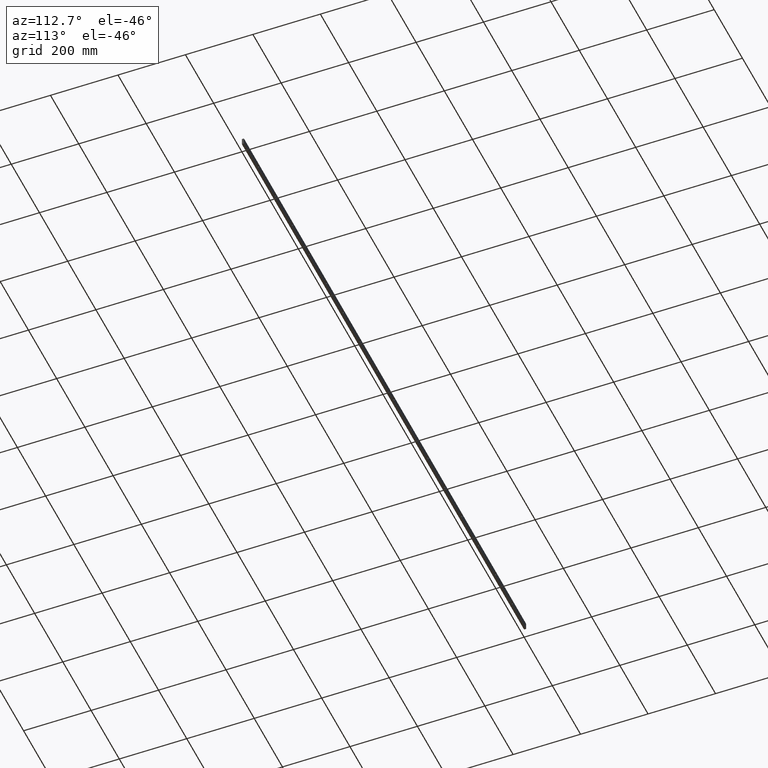
[diagram: clean part render]
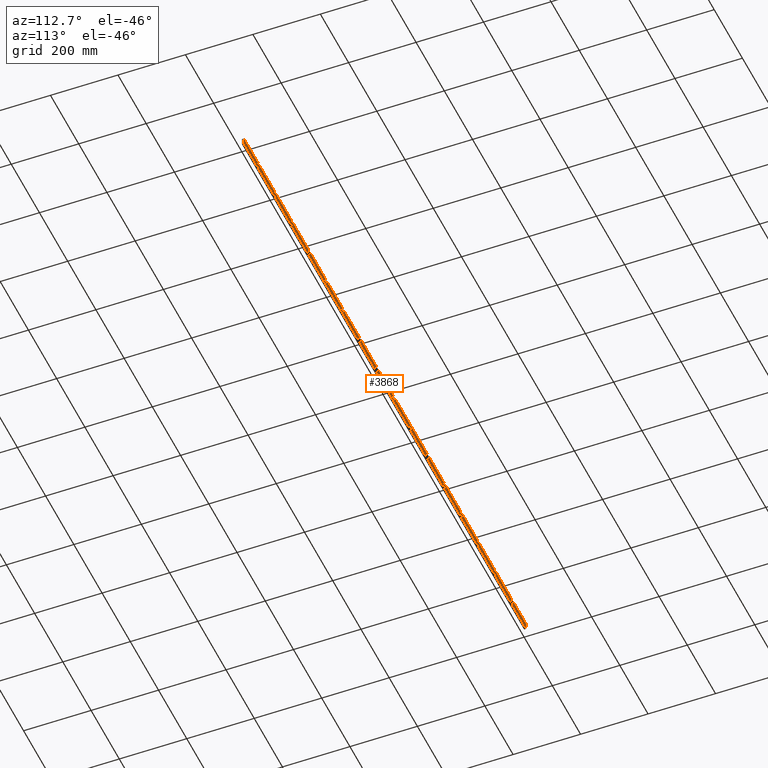
[diagram: same view with one face highlighted and labeled with its STEP entity id]
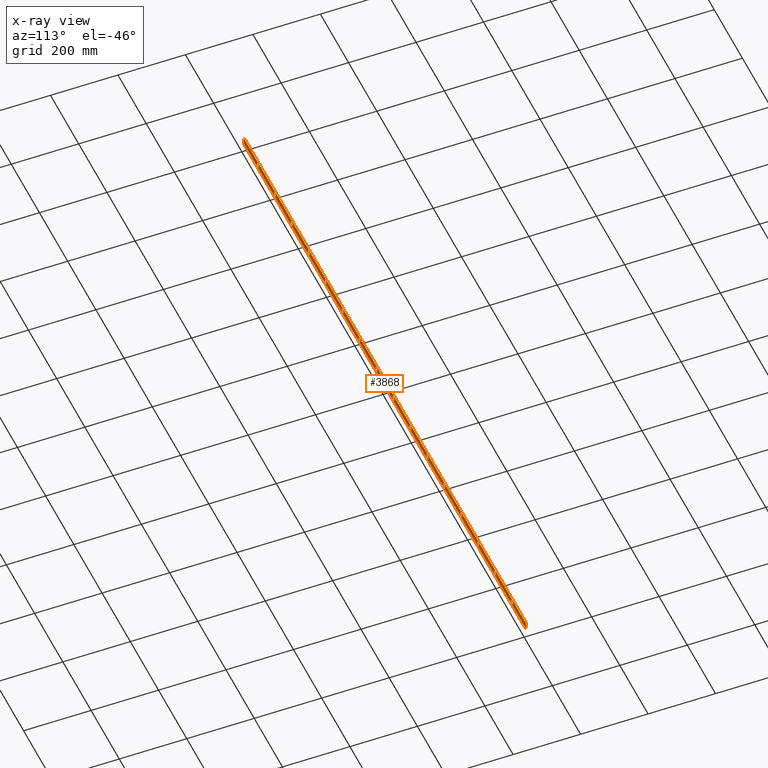
[diagram: x-ray of the same camera — body ghosted, the highlighted face saturated]
A machine part, auxiliary view. The second image highlights one B-rep face of the part: STEP entity #3868.
The next image is the same camera in x-ray: the body ghosted, the highlighted face saturated — about 0% of this face is hidden behind the body in this view.
In plain terms, the highlighted planar face has unit normal (0, -1, 0).
Its self-contained STEP definition (entity closure, byte-faithful):
#4 = DIRECTION ( 'NONE',  ( 0.0000000000000000000, 0.0000000000000000000, 1.000000000000000000 ) ) ;
#10 = EDGE_CURVE ( 'NONE', #327, #2465, #3402, .T. ) ;
#25 = DIRECTION ( 'NONE',  ( 0.0000000000000000000, 1.000000000000000000, 0.0000000000000000000 ) ) ;
#27 = CARTESIAN_POINT ( 'NONE',  ( 219.9999999999999100, 6.000000000000000000, -10.00000000000000000 ) ) ;
#28 = CARTESIAN_POINT ( 'NONE',  ( 1059.999999999999300, 6.000000000000000000, -10.00000000000000000 ) ) ;
#31 = CARTESIAN_POINT ( 'NONE',  ( 100.0000000000000000, 6.000000000000000000, -10.00000000000000000 ) ) ;
#36 = CIRCLE ( 'NONE', #5561, 6.499999999999903200 ) ;
#85 = DIRECTION ( 'NONE',  ( 0.0000000000000000000, 0.0000000000000000000, 1.000000000000000000 ) ) ;
#94 = ORIENTED_EDGE ( 'NONE', *, *, #816, .F. ) ;
#143 = PLANE ( 'NONE',  #3878 ) ;
#161 = EDGE_LOOP ( 'NONE', ( #6434, #4252 ) ) ;
#184 = DIRECTION ( 'NONE',  ( 0.0000000000000000000, 1.000000000000000000, 0.0000000000000000000 ) ) ;
#193 = CARTESIAN_POINT ( 'NONE',  ( 1299.999999999999300, 6.000000000000000000, -3.500000000000096800 ) ) ;
#200 = ORIENTED_EDGE ( 'NONE', *, *, #2024, .F. ) ;
#220 = CARTESIAN_POINT ( 'NONE',  ( 1299.999999999999300, 6.000000000000000000, -16.49999999999990400 ) ) ;
#233 = CARTESIAN_POINT ( 'NONE',  ( 1059.999999999999300, 6.000000000000000000, -16.49999999999990400 ) ) ;
#236 = DIRECTION ( 'NONE',  ( 0.0000000000000000000, 0.0000000000000000000, 1.000000000000000000 ) ) ;
#262 = CARTESIAN_POINT ( 'NONE',  ( 100.0000000000000000, 6.000000000000000000, -10.00000000000000000 ) ) ;
#276 = CARTESIAN_POINT ( 'NONE',  ( 0.0000000000000000000, 6.000000000000000000, 0.0000000000000000000 ) ) ;
#278 = CIRCLE ( 'NONE', #809, 6.499999999999903200 ) ;
#282 = CARTESIAN_POINT ( 'NONE',  ( 1419.999999999999300, 6.000000000000000000, -16.49999999999990400 ) ) ;
#309 = DIRECTION ( 'NONE',  ( 0.0000000000000000000, 0.0000000000000000000, 1.000000000000000000 ) ) ;
#318 = DIRECTION ( 'NONE',  ( 0.0000000000000000000, 1.000000000000000000, 0.0000000000000000000 ) ) ;
#326 = DIRECTION ( 'NONE',  ( 0.0000000000000000000, 1.000000000000000000, 0.0000000000000000000 ) ) ;
#327 = VERTEX_POINT ( 'NONE', #5230 ) ;
#333 = CIRCLE ( 'NONE', #3318, 6.499999999999903200 ) ;
#335 = CARTESIAN_POINT ( 'NONE',  ( 1539.999999999999100, 6.000000000000000000, -10.00000000000000000 ) ) ;
#350 = VERTEX_POINT ( 'NONE', #5167 ) ;
#357 = VERTEX_POINT ( 'NONE', #5191 ) ;
#410 = FACE_BOUND ( 'NONE', #534, .T. ) ;
#493 = DIRECTION ( 'NONE',  ( 0.0000000000000000000, 0.0000000000000000000, 1.000000000000000000 ) ) ;
#497 = DIRECTION ( 'NONE',  ( 0.0000000000000000000, 1.000000000000000000, 0.0000000000000000000 ) ) ;
#507 = CARTESIAN_POINT ( 'NONE',  ( 699.9999999999996600, 6.000000000000000000, -10.00000000000000000 ) ) ;
#511 = EDGE_LOOP ( 'NONE', ( #1147, #7027 ) ) ;
#534 = EDGE_LOOP ( 'NONE', ( #3570, #5729 ) ) ;
#572 = DIRECTION ( 'NONE',  ( 0.0000000000000000000, 1.000000000000000000, 0.0000000000000000000 ) ) ;
#585 = FACE_OUTER_BOUND ( 'NONE', #4127, .T. ) ;
#601 = EDGE_CURVE ( 'NONE', #3578, #6536, #4064, .T. ) ;
#611 = DIRECTION ( 'NONE',  ( 0.0000000000000000000, 0.0000000000000000000, 1.000000000000000000 ) ) ;
#613 = AXIS2_PLACEMENT_3D ( 'NONE', #1420, #5351, #1993 ) ;
#617 = DIRECTION ( 'NONE',  ( 0.0000000000000000000, 0.0000000000000000000, 1.000000000000000000 ) ) ;
#625 = VERTEX_POINT ( 'NONE', #4316 ) ;
#713 = ORIENTED_EDGE ( 'NONE', *, *, #6050, .F. ) ;
#718 = CARTESIAN_POINT ( 'NONE',  ( 0.0000000000000000000, 6.000000000000000000, 0.0000000000000000000 ) ) ;
#725 = CARTESIAN_POINT ( 'NONE',  ( 579.9999999999997700, 6.000000000000000000, -16.50000000000002100 ) ) ;
#761 = AXIS2_PLACEMENT_3D ( 'NONE', #28, #3969, #611 ) ;
#768 = CIRCLE ( 'NONE', #4829, 6.499999999999903200 ) ;
#796 = CARTESIAN_POINT ( 'NONE',  ( 819.9999999999995500, 6.000000000000000000, -10.00000000000000000 ) ) ;
#809 = AXIS2_PLACEMENT_3D ( 'NONE', #1699, #1692, #1691 ) ;
#816 = EDGE_CURVE ( 'NONE', #1423, #350, #3536, .T. ) ;
#831 = DIRECTION ( 'NONE',  ( 0.0000000000000000000, 0.0000000000000000000, 1.000000000000000000 ) ) ;
#866 = CARTESIAN_POINT ( 'NONE',  ( 1539.999999999999100, 6.000000000000000000, -3.500000000000096800 ) ) ;
#879 = EDGE_LOOP ( 'NONE', ( #6784, #3708 ) ) ;
#903 = CARTESIAN_POINT ( 'NONE',  ( 1779.999999999999100, 6.000000000000000000, -3.500000000000096800 ) ) ;
#913 = CIRCLE ( 'NONE', #5608, 6.500000000000019500 ) ;
#927 = CARTESIAN_POINT ( 'NONE',  ( 1179.999999999999500, 6.000000000000000000, -3.500000000000096800 ) ) ;
#940 = ORIENTED_EDGE ( 'NONE', *, *, #5684, .F. ) ;
#945 = CIRCLE ( 'NONE', #4544, 6.499999999999903200 ) ;
#950 = VERTEX_POINT ( 'NONE', #2510 ) ;
#973 = ORIENTED_EDGE ( 'NONE', *, *, #5915, .F. ) ;
#1027 = CARTESIAN_POINT ( 'NONE',  ( 699.9999999999996600, 6.000000000000000000, -3.499999999999980500 ) ) ;
#1083 = DIRECTION ( 'NONE',  ( 0.0000000000000000000, 1.000000000000000000, 0.0000000000000000000 ) ) ;
#1112 = ORIENTED_EDGE ( 'NONE', *, *, #2904, .F. ) ;
#1147 = ORIENTED_EDGE ( 'NONE', *, *, #4899, .F. ) ;
#1204 = EDGE_CURVE ( 'NONE', #3413, #5615, #278, .T. ) ;
#1220 = CIRCLE ( 'NONE', #613, 6.499999999999903200 ) ;
#1309 = DIRECTION ( 'NONE',  ( -0.0000000000000000000, -0.0000000000000000000, 1.000000000000000000 ) ) ;
#1321 = CARTESIAN_POINT ( 'NONE',  ( 339.9999999999998900, 6.000000000000000000, -3.499999999999984900 ) ) ;
#1361 = CARTESIAN_POINT ( 'NONE',  ( 1299.999999999999300, 6.000000000000000000, -10.00000000000000000 ) ) ;
#1362 = DIRECTION ( 'NONE',  ( 0.0000000000000000000, 0.0000000000000000000, 1.000000000000000000 ) ) ;
#1365 = VERTEX_POINT ( 'NONE', #1321 ) ;
#1420 = CARTESIAN_POINT ( 'NONE',  ( 1899.999999999999100, 6.000000000000000000, -10.00000000000000000 ) ) ;
#1423 = VERTEX_POINT ( 'NONE', #903 ) ;
#1477 = VERTEX_POINT ( 'NONE', #276 ) ;
#1483 = VERTEX_POINT ( 'NONE', #220 ) ;
#1484 = ORIENTED_EDGE ( 'NONE', *, *, #5307, .F. ) ;
#1534 = EDGE_CURVE ( 'NONE', #5329, #4450, #2056, .T. ) ;
#1576 = CIRCLE ( 'NONE', #6185, 6.499999999999903200 ) ;
#1599 = VERTEX_POINT ( 'NONE', #282 ) ;
#1600 = CARTESIAN_POINT ( 'NONE',  ( 0.0000000000000000000, 6.000000000000000000, -20.00000000000000000 ) ) ;
#1609 = AXIS2_PLACEMENT_3D ( 'NONE', #3701, #326, #4269 ) ;
#1691 = DIRECTION ( 'NONE',  ( 0.0000000000000000000, 0.0000000000000000000, 1.000000000000000000 ) ) ;
#1692 = DIRECTION ( 'NONE',  ( 0.0000000000000000000, 1.000000000000000000, 0.0000000000000000000 ) ) ;
#1699 = CARTESIAN_POINT ( 'NONE',  ( 1179.999999999999500, 6.000000000000000000, -10.00000000000000000 ) ) ;
#1728 = DIRECTION ( 'NONE',  ( 0.0000000000000000000, 1.000000000000000000, 0.0000000000000000000 ) ) ;
#1739 = DIRECTION ( 'NONE',  ( 0.0000000000000000000, 1.000000000000000000, 0.0000000000000000000 ) ) ;
#1747 = AXIS2_PLACEMENT_3D ( 'NONE', #5448, #2084, #5999 ) ;
#1779 = EDGE_CURVE ( 'NONE', #1957, #6258, #6139, .T. ) ;
#1802 = CARTESIAN_POINT ( 'NONE',  ( 1899.999999999999100, 6.000000000000000000, -16.49999999999990400 ) ) ;
#1806 = EDGE_CURVE ( 'NONE', #4020, #6988, #3680, .T. ) ;
#1825 = EDGE_CURVE ( 'NONE', #357, #1599, #333, .T. ) ;
#1870 = CARTESIAN_POINT ( 'NONE',  ( 219.9999999999999100, 6.000000000000000000, -10.00000000000000000 ) ) ;
#1904 = FACE_BOUND ( 'NONE', #161, .T. ) ;
#1935 = DIRECTION ( 'NONE',  ( 0.0000000000000000000, 0.0000000000000000000, 1.000000000000000000 ) ) ;
#1942 = EDGE_LOOP ( 'NONE', ( #1112, #94 ) ) ;
#1957 = VERTEX_POINT ( 'NONE', #725 ) ;
#1993 = DIRECTION ( 'NONE',  ( 0.0000000000000000000, 0.0000000000000000000, 1.000000000000000000 ) ) ;
#2024 = EDGE_CURVE ( 'NONE', #1599, #357, #768, .T. ) ;
#2056 = CIRCLE ( 'NONE', #4587, 6.499999999999985800 ) ;
#2084 = DIRECTION ( 'NONE',  ( 0.0000000000000000000, 1.000000000000000000, 0.0000000000000000000 ) ) ;
#2085 = ORIENTED_EDGE ( 'NONE', *, *, #7155, .F. ) ;
#2090 = FACE_BOUND ( 'NONE', #6572, .T. ) ;
#2111 = DIRECTION ( 'NONE',  ( 0.0000000000000000000, 1.000000000000000000, 0.0000000000000000000 ) ) ;
#2126 = DIRECTION ( 'NONE',  ( 0.0000000000000000000, 1.000000000000000000, 0.0000000000000000000 ) ) ;
#2131 = AXIS2_PLACEMENT_3D ( 'NONE', #4469, #1083, #5041 ) ;
#2157 = CIRCLE ( 'NONE', #2227, 6.499999999999903200 ) ;
#2210 = AXIS2_PLACEMENT_3D ( 'NONE', #507, #497, #493 ) ;
#2227 = AXIS2_PLACEMENT_3D ( 'NONE', #3008, #6875, #3562 ) ;
#2247 = DIRECTION ( 'NONE',  ( 0.0000000000000000000, 1.000000000000000000, 0.0000000000000000000 ) ) ;
#2263 = FACE_BOUND ( 'NONE', #3601, .T. ) ;
#2267 = DIRECTION ( 'NONE',  ( 0.0000000000000000000, 1.000000000000000000, 0.0000000000000000000 ) ) ;
#2378 = EDGE_LOOP ( 'NONE', ( #6634, #6710 ) ) ;
#2439 = DIRECTION ( 'NONE',  ( 0.0000000000000000000, 0.0000000000000000000, 1.000000000000000000 ) ) ;
#2442 = AXIS2_PLACEMENT_3D ( 'NONE', #4271, #4265, #4258 ) ;
#2465 = VERTEX_POINT ( 'NONE', #1027 ) ;
#2488 = DIRECTION ( 'NONE',  ( 0.0000000000000000000, 1.000000000000000000, 0.0000000000000000000 ) ) ;
#2510 = CARTESIAN_POINT ( 'NONE',  ( 1659.999999999999100, 6.000000000000000000, -3.500000000000096800 ) ) ;
#2523 = DIRECTION ( 'NONE',  ( 0.0000000000000000000, 1.000000000000000000, 0.0000000000000000000 ) ) ;
#2566 = AXIS2_PLACEMENT_3D ( 'NONE', #6664, #5145, #6182 ) ;
#2568 = EDGE_LOOP ( 'NONE', ( #3448, #940 ) ) ;
#2572 = ORIENTED_EDGE ( 'NONE', *, *, #1806, .T. ) ;
#2576 = EDGE_CURVE ( 'NONE', #4293, #2764, #1576, .T. ) ;
#2639 = ORIENTED_EDGE ( 'NONE', *, *, #6515, .F. ) ;
#2643 = VECTOR ( 'NONE', #2852, 1000.000000000000000 ) ;
#2678 = EDGE_CURVE ( 'NONE', #4688, #6137, #2726, .T. ) ;
#2688 = CIRCLE ( 'NONE', #7169, 6.500000000000016000 ) ;
#2703 = CIRCLE ( 'NONE', #6292, 6.500000000000015100 ) ;
#2707 = CARTESIAN_POINT ( 'NONE',  ( 939.9999999999995500, 6.000000000000000000, -3.499999999999980500 ) ) ;
#2726 = CIRCLE ( 'NONE', #761, 6.499999999999903200 ) ;
#2744 = EDGE_LOOP ( 'NONE', ( #200, #5095 ) ) ;
#2764 = VERTEX_POINT ( 'NONE', #2900 ) ;
#2823 = EDGE_LOOP ( 'NONE', ( #5991, #2639 ) ) ;
#2852 = DIRECTION ( 'NONE',  ( -1.000000000000000000, -0.0000000000000000000, -0.0000000000000000000 ) ) ;
#2856 = VERTEX_POINT ( 'NONE', #4794 ) ;
#2891 = ORIENTED_EDGE ( 'NONE', *, *, #4177, .F. ) ;
#2895 = CIRCLE ( 'NONE', #3031, 6.499999999999985800 ) ;
#2900 = CARTESIAN_POINT ( 'NONE',  ( 1539.999999999999100, 6.000000000000000000, -16.49999999999990400 ) ) ;
#2904 = EDGE_CURVE ( 'NONE', #350, #1423, #6856, .T. ) ;
#2946 = VECTOR ( 'NONE', #7186, 1000.000000000000000 ) ;
#2987 = ORIENTED_EDGE ( 'NONE', *, *, #6934, .T. ) ;
#3008 = CARTESIAN_POINT ( 'NONE',  ( 1899.999999999999100, 6.000000000000000000, -10.00000000000000000 ) ) ;
#3012 = AXIS2_PLACEMENT_3D ( 'NONE', #5120, #1739, #5669 ) ;
#3031 = AXIS2_PLACEMENT_3D ( 'NONE', #1870, #5798, #2439 ) ;
#3033 = CIRCLE ( 'NONE', #5015, 6.500000000000016000 ) ;
#3042 = EDGE_CURVE ( 'NONE', #5615, #3413, #945, .T. ) ;
#3051 = CARTESIAN_POINT ( 'NONE',  ( 939.9999999999995500, 6.000000000000000000, -16.50000000000002100 ) ) ;
#3081 = EDGE_LOOP ( 'NONE', ( #5785, #5232 ) ) ;
#3113 = EDGE_CURVE ( 'NONE', #4348, #625, #3573, .T. ) ;
#3184 = CIRCLE ( 'NONE', #6166, 6.499999999999903200 ) ;
#3189 = EDGE_CURVE ( 'NONE', #6640, #3337, #3237, .T. ) ;
#3208 = CARTESIAN_POINT ( 'NONE',  ( 1059.999999999999300, 6.000000000000000000, -3.500000000000096800 ) ) ;
#3215 = CARTESIAN_POINT ( 'NONE',  ( 459.9999999999997200, 6.000000000000000000, -16.50000000000001400 ) ) ;
#3231 = FACE_BOUND ( 'NONE', #2378, .T. ) ;
#3237 = CIRCLE ( 'NONE', #7087, 6.500000000000019500 ) ;
#3254 = CARTESIAN_POINT ( 'NONE',  ( 100.0000000000000000, 6.000000000000000000, -3.499999999999984000 ) ) ;
#3280 = CARTESIAN_POINT ( 'NONE',  ( 339.9999999999998900, 6.000000000000000000, -16.50000000000001400 ) ) ;
#3304 = LINE ( 'NONE', #6685, #2946 ) ;
#3305 = CARTESIAN_POINT ( 'NONE',  ( 1179.999999999999500, 6.000000000000000000, -16.49999999999990400 ) ) ;
#3307 = DIRECTION ( 'NONE',  ( 0.0000000000000000000, 0.0000000000000000000, 1.000000000000000000 ) ) ;
#3313 = DIRECTION ( 'NONE',  ( 0.0000000000000000000, 1.000000000000000000, 0.0000000000000000000 ) ) ;
#3314 = CARTESIAN_POINT ( 'NONE',  ( 1779.999999999999100, 6.000000000000000000, -10.00000000000000000 ) ) ;
#3318 = AXIS2_PLACEMENT_3D ( 'NONE', #5973, #5911, #5505 ) ;
#3333 = VECTOR ( 'NONE', #6208, 1000.000000000000000 ) ;
#3337 = VERTEX_POINT ( 'NONE', #4996 ) ;
#3343 = ORIENTED_EDGE ( 'NONE', *, *, #2678, .F. ) ;
#3383 = CIRCLE ( 'NONE', #4251, 6.500000000000019500 ) ;
#3387 = ORIENTED_EDGE ( 'NONE', *, *, #3189, .F. ) ;
#3395 = FACE_BOUND ( 'NONE', #2823, .T. ) ;
#3401 = AXIS2_PLACEMENT_3D ( 'NONE', #5607, #2247, #6176 ) ;
#3402 = CIRCLE ( 'NONE', #2210, 6.500000000000019500 ) ;
#3413 = VERTEX_POINT ( 'NONE', #927 ) ;
#3448 = ORIENTED_EDGE ( 'NONE', *, *, #3984, .F. ) ;
#3466 = DIRECTION ( 'NONE',  ( 0.0000000000000000000, 1.000000000000000000, 0.0000000000000000000 ) ) ;
#3536 = CIRCLE ( 'NONE', #3944, 6.499999999999903200 ) ;
#3558 = CARTESIAN_POINT ( 'NONE',  ( 939.9999999999995500, 6.000000000000000000, -10.00000000000000000 ) ) ;
#3562 = DIRECTION ( 'NONE',  ( 0.0000000000000000000, 0.0000000000000000000, 1.000000000000000000 ) ) ;
#3565 = FACE_BOUND ( 'NONE', #2568, .T. ) ;
#3570 = ORIENTED_EDGE ( 'NONE', *, *, #3042, .F. ) ;
#3573 = CIRCLE ( 'NONE', #5671, 6.500000000000015100 ) ;
#3578 = VERTEX_POINT ( 'NONE', #2707 ) ;
#3601 = EDGE_LOOP ( 'NONE', ( #3387, #6154 ) ) ;
#3610 = DIRECTION ( 'NONE',  ( 0.0000000000000000000, 1.000000000000000000, 0.0000000000000000000 ) ) ;
#3680 = LINE ( 'NONE', #6675, #3333 ) ;
#3701 = CARTESIAN_POINT ( 'NONE',  ( 339.9999999999998900, 6.000000000000000000, -10.00000000000000000 ) ) ;
#3708 = ORIENTED_EDGE ( 'NONE', *, *, #4464, .F. ) ;
#3748 = FACE_BOUND ( 'NONE', #5710, .T. ) ;
#3868 = ADVANCED_FACE ( 'NONE', ( #6703, #6546, #3748, #6850, #2263, #5084, #3565, #2090, #585, #6368, #4907, #3395, #1904, #410, #6207, #4717, #3231 ), #143, .F. ) ;
#3878 = AXIS2_PLACEMENT_3D ( 'NONE', #718, #6316, #4663 ) ;
#3927 = EDGE_CURVE ( 'NONE', #6191, #1483, #36, .T. ) ;
#3932 = CARTESIAN_POINT ( 'NONE',  ( 819.9999999999995500, 6.000000000000000000, -10.00000000000000000 ) ) ;
#3944 = AXIS2_PLACEMENT_3D ( 'NONE', #3314, #3313, #3307 ) ;
#3969 = DIRECTION ( 'NONE',  ( 0.0000000000000000000, 1.000000000000000000, 0.0000000000000000000 ) ) ;
#3976 = DIRECTION ( 'NONE',  ( 0.0000000000000000000, 1.000000000000000000, 0.0000000000000000000 ) ) ;
#3984 = EDGE_CURVE ( 'NONE', #5591, #1365, #2703, .T. ) ;
#4020 = VERTEX_POINT ( 'NONE', #6941 ) ;
#4064 = CIRCLE ( 'NONE', #2442, 6.500000000000019500 ) ;
#4081 = CARTESIAN_POINT ( 'NONE',  ( 0.0000000000000000000, 6.000000000000000000, -20.00000000000000000 ) ) ;
#4084 = CIRCLE ( 'NONE', #1609, 6.500000000000015100 ) ;
#4124 = DIRECTION ( 'NONE',  ( 0.0000000000000000000, 0.0000000000000000000, 1.000000000000000000 ) ) ;
#4127 = EDGE_LOOP ( 'NONE', ( #5443, #4210, #2572, #2987 ) ) ;
#4177 = EDGE_CURVE ( 'NONE', #1483, #6191, #6241, .T. ) ;
#4206 = DIRECTION ( 'NONE',  ( 0.0000000000000000000, 1.000000000000000000, 0.0000000000000000000 ) ) ;
#4210 = ORIENTED_EDGE ( 'NONE', *, *, #6377, .T. ) ;
#4251 = AXIS2_PLACEMENT_3D ( 'NONE', #3932, #572, #4517 ) ;
#4252 = ORIENTED_EDGE ( 'NONE', *, *, #601, .F. ) ;
#4258 = DIRECTION ( 'NONE',  ( 0.0000000000000000000, 0.0000000000000000000, 1.000000000000000000 ) ) ;
#4265 = DIRECTION ( 'NONE',  ( 0.0000000000000000000, 1.000000000000000000, 0.0000000000000000000 ) ) ;
#4269 = DIRECTION ( 'NONE',  ( 0.0000000000000000000, 0.0000000000000000000, 1.000000000000000000 ) ) ;
#4271 = CARTESIAN_POINT ( 'NONE',  ( 939.9999999999995500, 6.000000000000000000, -10.00000000000000000 ) ) ;
#4293 = VERTEX_POINT ( 'NONE', #866 ) ;
#4316 = CARTESIAN_POINT ( 'NONE',  ( 459.9999999999997200, 6.000000000000000000, -3.499999999999984900 ) ) ;
#4345 = CARTESIAN_POINT ( 'NONE',  ( 1899.999999999999100, 6.000000000000000000, -3.500000000000096800 ) ) ;
#4348 = VERTEX_POINT ( 'NONE', #3215 ) ;
#4450 = VERTEX_POINT ( 'NONE', #6172 ) ;
#4464 = EDGE_CURVE ( 'NONE', #950, #5738, #3184, .T. ) ;
#4469 = CARTESIAN_POINT ( 'NONE',  ( 1059.999999999999300, 6.000000000000000000, -10.00000000000000000 ) ) ;
#4517 = DIRECTION ( 'NONE',  ( 0.0000000000000000000, 0.0000000000000000000, 1.000000000000000000 ) ) ;
#4544 = AXIS2_PLACEMENT_3D ( 'NONE', #6777, #3466, #85 ) ;
#4587 = AXIS2_PLACEMENT_3D ( 'NONE', #27, #25, #4 ) ;
#4663 = DIRECTION ( 'NONE',  ( 0.0000000000000000000, -0.0000000000000000000, -1.000000000000000000 ) ) ;
#4688 = VERTEX_POINT ( 'NONE', #233 ) ;
#4717 = FACE_BOUND ( 'NONE', #879, .T. ) ;
#4737 = DIRECTION ( 'NONE',  ( 0.0000000000000000000, 1.000000000000000000, 0.0000000000000000000 ) ) ;
#4754 = EDGE_LOOP ( 'NONE', ( #7026, #2085 ) ) ;
#4758 = CIRCLE ( 'NONE', #3012, 6.499999999999903200 ) ;
#4794 = CARTESIAN_POINT ( 'NONE',  ( 100.0000000000000000, 6.000000000000000000, -16.50000000000001400 ) ) ;
#4829 = AXIS2_PLACEMENT_3D ( 'NONE', #5770, #5760, #5750 ) ;
#4899 = EDGE_CURVE ( 'NONE', #2764, #4293, #4758, .T. ) ;
#4907 = FACE_BOUND ( 'NONE', #6231, .T. ) ;
#4986 = VECTOR ( 'NONE', #1309, 1000.000000000000000 ) ;
#4996 = CARTESIAN_POINT ( 'NONE',  ( 819.9999999999995500, 6.000000000000000000, -3.499999999999980500 ) ) ;
#5015 = AXIS2_PLACEMENT_3D ( 'NONE', #31, #3976, #617 ) ;
#5041 = DIRECTION ( 'NONE',  ( 0.0000000000000000000, 0.0000000000000000000, 1.000000000000000000 ) ) ;
#5072 = EDGE_CURVE ( 'NONE', #5213, #7111, #1220, .T. ) ;
#5084 = FACE_BOUND ( 'NONE', #3081, .T. ) ;
#5095 = ORIENTED_EDGE ( 'NONE', *, *, #1825, .F. ) ;
#5112 = AXIS2_PLACEMENT_3D ( 'NONE', #5481, #2126, #6038 ) ;
#5114 = CARTESIAN_POINT ( 'NONE',  ( 2000.000000000000000, 6.000000000000000000, -20.00000000000000000 ) ) ;
#5120 = CARTESIAN_POINT ( 'NONE',  ( 1539.999999999999100, 6.000000000000000000, -10.00000000000000000 ) ) ;
#5145 = DIRECTION ( 'NONE',  ( 0.0000000000000000000, 1.000000000000000000, 0.0000000000000000000 ) ) ;
#5167 = CARTESIAN_POINT ( 'NONE',  ( 1779.999999999999100, 6.000000000000000000, -16.49999999999990400 ) ) ;
#5173 = EDGE_CURVE ( 'NONE', #625, #4348, #5368, .T. ) ;
#5191 = CARTESIAN_POINT ( 'NONE',  ( 1419.999999999999300, 6.000000000000000000, -3.500000000000096800 ) ) ;
#5213 = VERTEX_POINT ( 'NONE', #4345 ) ;
#5230 = CARTESIAN_POINT ( 'NONE',  ( 699.9999999999996600, 6.000000000000000000, -16.50000000000002100 ) ) ;
#5232 = ORIENTED_EDGE ( 'NONE', *, *, #6512, .F. ) ;
#5302 = DIRECTION ( 'NONE',  ( 0.0000000000000000000, 1.000000000000000000, 0.0000000000000000000 ) ) ;
#5307 = EDGE_CURVE ( 'NONE', #6137, #4688, #6651, .T. ) ;
#5329 = VERTEX_POINT ( 'NONE', #7184 ) ;
#5351 = DIRECTION ( 'NONE',  ( 0.0000000000000000000, 1.000000000000000000, 0.0000000000000000000 ) ) ;
#5368 = CIRCLE ( 'NONE', #1747, 6.500000000000015100 ) ;
#5372 = CARTESIAN_POINT ( 'NONE',  ( 579.9999999999997700, 6.000000000000000000, -3.499999999999980500 ) ) ;
#5397 = CARTESIAN_POINT ( 'NONE',  ( 1659.999999999999100, 6.000000000000000000, -16.49999999999990400 ) ) ;
#5434 = CARTESIAN_POINT ( 'NONE',  ( 699.9999999999996600, 6.000000000000000000, -10.00000000000000000 ) ) ;
#5443 = ORIENTED_EDGE ( 'NONE', *, *, #6155, .T. ) ;
#5448 = CARTESIAN_POINT ( 'NONE',  ( 459.9999999999997200, 6.000000000000000000, -10.00000000000000000 ) ) ;
#5471 = CARTESIAN_POINT ( 'NONE',  ( 1299.999999999999300, 6.000000000000000000, -10.00000000000000000 ) ) ;
#5481 = CARTESIAN_POINT ( 'NONE',  ( 1659.999999999999100, 6.000000000000000000, -10.00000000000000000 ) ) ;
#5505 = DIRECTION ( 'NONE',  ( 0.0000000000000000000, 0.0000000000000000000, 1.000000000000000000 ) ) ;
#5561 = AXIS2_PLACEMENT_3D ( 'NONE', #1361, #5302, #1935 ) ;
#5591 = VERTEX_POINT ( 'NONE', #3280 ) ;
#5607 = CARTESIAN_POINT ( 'NONE',  ( 1779.999999999999100, 6.000000000000000000, -10.00000000000000000 ) ) ;
#5608 = AXIS2_PLACEMENT_3D ( 'NONE', #5838, #2488, #6404 ) ;
#5615 = VERTEX_POINT ( 'NONE', #3305 ) ;
#5619 = LINE ( 'NONE', #1600, #2643 ) ;
#5632 = CARTESIAN_POINT ( 'NONE',  ( 1659.999999999999100, 6.000000000000000000, -10.00000000000000000 ) ) ;
#5659 = DIRECTION ( 'NONE',  ( 0.0000000000000000000, 0.0000000000000000000, 1.000000000000000000 ) ) ;
#5669 = DIRECTION ( 'NONE',  ( 0.0000000000000000000, 0.0000000000000000000, 1.000000000000000000 ) ) ;
#5671 = AXIS2_PLACEMENT_3D ( 'NONE', #6910, #3610, #236 ) ;
#5684 = EDGE_CURVE ( 'NONE', #1365, #5591, #4084, .T. ) ;
#5710 = EDGE_LOOP ( 'NONE', ( #2891, #5723 ) ) ;
#5723 = ORIENTED_EDGE ( 'NONE', *, *, #3927, .F. ) ;
#5729 = ORIENTED_EDGE ( 'NONE', *, *, #1204, .F. ) ;
#5738 = VERTEX_POINT ( 'NONE', #5397 ) ;
#5750 = DIRECTION ( 'NONE',  ( 0.0000000000000000000, 0.0000000000000000000, 1.000000000000000000 ) ) ;
#5760 = DIRECTION ( 'NONE',  ( 0.0000000000000000000, 1.000000000000000000, 0.0000000000000000000 ) ) ;
#5770 = CARTESIAN_POINT ( 'NONE',  ( 1419.999999999999300, 6.000000000000000000, -10.00000000000000000 ) ) ;
#5785 = ORIENTED_EDGE ( 'NONE', *, *, #1779, .F. ) ;
#5798 = DIRECTION ( 'NONE',  ( 0.0000000000000000000, 1.000000000000000000, 0.0000000000000000000 ) ) ;
#5838 = CARTESIAN_POINT ( 'NONE',  ( 579.9999999999997700, 6.000000000000000000, -10.00000000000000000 ) ) ;
#5878 = CARTESIAN_POINT ( 'NONE',  ( 339.9999999999998900, 6.000000000000000000, -10.00000000000000000 ) ) ;
#5881 = EDGE_LOOP ( 'NONE', ( #3343, #1484 ) ) ;
#5909 = EDGE_CURVE ( 'NONE', #3337, #6640, #3383, .T. ) ;
#5911 = DIRECTION ( 'NONE',  ( 0.0000000000000000000, 1.000000000000000000, 0.0000000000000000000 ) ) ;
#5915 = EDGE_CURVE ( 'NONE', #6858, #2856, #3033, .T. ) ;
#5973 = CARTESIAN_POINT ( 'NONE',  ( 1419.999999999999300, 6.000000000000000000, -10.00000000000000000 ) ) ;
#5979 = ORIENTED_EDGE ( 'NONE', *, *, #3113, .F. ) ;
#5991 = ORIENTED_EDGE ( 'NONE', *, *, #10, .F. ) ;
#5999 = DIRECTION ( 'NONE',  ( 0.0000000000000000000, 0.0000000000000000000, 1.000000000000000000 ) ) ;
#6010 = EDGE_CURVE ( 'NONE', #6536, #3578, #7077, .T. ) ;
#6026 = DIRECTION ( 'NONE',  ( 0.0000000000000000000, 0.0000000000000000000, 1.000000000000000000 ) ) ;
#6038 = DIRECTION ( 'NONE',  ( 0.0000000000000000000, 0.0000000000000000000, 1.000000000000000000 ) ) ;
#6050 = EDGE_CURVE ( 'NONE', #2856, #6858, #2688, .T. ) ;
#6137 = VERTEX_POINT ( 'NONE', #3208 ) ;
#6139 = CIRCLE ( 'NONE', #2566, 6.500000000000019500 ) ;
#6152 = EDGE_CURVE ( 'NONE', #7111, #5213, #2157, .T. ) ;
#6154 = ORIENTED_EDGE ( 'NONE', *, *, #5909, .F. ) ;
#6155 = EDGE_CURVE ( 'NONE', #7137, #1477, #6609, .T. ) ;
#6166 = AXIS2_PLACEMENT_3D ( 'NONE', #5632, #2267, #6193 ) ;
#6172 = CARTESIAN_POINT ( 'NONE',  ( 219.9999999999999100, 6.000000000000000000, -3.500000000000014200 ) ) ;
#6176 = DIRECTION ( 'NONE',  ( 0.0000000000000000000, 0.0000000000000000000, 1.000000000000000000 ) ) ;
#6182 = DIRECTION ( 'NONE',  ( 0.0000000000000000000, 0.0000000000000000000, 1.000000000000000000 ) ) ;
#6185 = AXIS2_PLACEMENT_3D ( 'NONE', #335, #318, #309 ) ;
#6191 = VERTEX_POINT ( 'NONE', #193 ) ;
#6193 = DIRECTION ( 'NONE',  ( 0.0000000000000000000, 0.0000000000000000000, 1.000000000000000000 ) ) ;
#6207 = FACE_BOUND ( 'NONE', #2744, .T. ) ;
#6208 = DIRECTION ( 'NONE',  ( 0.0000000000000000000, 0.0000000000000000000, -1.000000000000000000 ) ) ;
#6231 = EDGE_LOOP ( 'NONE', ( #5979, #7036 ) ) ;
#6241 = CIRCLE ( 'NONE', #6992, 6.499999999999903200 ) ;
#6258 = VERTEX_POINT ( 'NONE', #5372 ) ;
#6292 = AXIS2_PLACEMENT_3D ( 'NONE', #5878, #2523, #6436 ) ;
#6316 = DIRECTION ( 'NONE',  ( 0.0000000000000000000, -1.000000000000000000, 0.0000000000000000000 ) ) ;
#6346 = AXIS2_PLACEMENT_3D ( 'NONE', #5434, #1728, #5659 ) ;
#6357 = CARTESIAN_POINT ( 'NONE',  ( 0.0000000000000000000, 6.000000000000000000, 0.0000000000000000000 ) ) ;
#6368 = FACE_BOUND ( 'NONE', #4754, .T. ) ;
#6377 = EDGE_CURVE ( 'NONE', #1477, #4020, #3304, .T. ) ;
#6404 = DIRECTION ( 'NONE',  ( 0.0000000000000000000, 0.0000000000000000000, 1.000000000000000000 ) ) ;
#6434 = ORIENTED_EDGE ( 'NONE', *, *, #6010, .F. ) ;
#6436 = DIRECTION ( 'NONE',  ( 0.0000000000000000000, 0.0000000000000000000, 1.000000000000000000 ) ) ;
#6487 = AXIS2_PLACEMENT_3D ( 'NONE', #3558, #184, #4124 ) ;
#6512 = EDGE_CURVE ( 'NONE', #6258, #1957, #913, .T. ) ;
#6515 = EDGE_CURVE ( 'NONE', #2465, #327, #6830, .T. ) ;
#6536 = VERTEX_POINT ( 'NONE', #3051 ) ;
#6546 = FACE_BOUND ( 'NONE', #511, .T. ) ;
#6572 = EDGE_LOOP ( 'NONE', ( #713, #973 ) ) ;
#6599 = CIRCLE ( 'NONE', #5112, 6.499999999999903200 ) ;
#6609 = LINE ( 'NONE', #6357, #4986 ) ;
#6634 = ORIENTED_EDGE ( 'NONE', *, *, #6152, .F. ) ;
#6640 = VERTEX_POINT ( 'NONE', #6864 ) ;
#6651 = CIRCLE ( 'NONE', #2131, 6.499999999999903200 ) ;
#6664 = CARTESIAN_POINT ( 'NONE',  ( 579.9999999999997700, 6.000000000000000000, -10.00000000000000000 ) ) ;
#6675 = CARTESIAN_POINT ( 'NONE',  ( 2000.000000000000000, 6.000000000000000000, 0.0000000000000000000 ) ) ;
#6685 = CARTESIAN_POINT ( 'NONE',  ( 0.0000000000000000000, 6.000000000000000000, 0.0000000000000000000 ) ) ;
#6703 = FACE_BOUND ( 'NONE', #1942, .T. ) ;
#6710 = ORIENTED_EDGE ( 'NONE', *, *, #5072, .F. ) ;
#6777 = CARTESIAN_POINT ( 'NONE',  ( 1179.999999999999500, 6.000000000000000000, -10.00000000000000000 ) ) ;
#6784 = ORIENTED_EDGE ( 'NONE', *, *, #6838, .F. ) ;
#6830 = CIRCLE ( 'NONE', #6346, 6.500000000000019500 ) ;
#6838 = EDGE_CURVE ( 'NONE', #5738, #950, #6599, .T. ) ;
#6850 = FACE_BOUND ( 'NONE', #5881, .T. ) ;
#6856 = CIRCLE ( 'NONE', #3401, 6.499999999999903200 ) ;
#6858 = VERTEX_POINT ( 'NONE', #3254 ) ;
#6864 = CARTESIAN_POINT ( 'NONE',  ( 819.9999999999995500, 6.000000000000000000, -16.50000000000002100 ) ) ;
#6875 = DIRECTION ( 'NONE',  ( 0.0000000000000000000, 1.000000000000000000, 0.0000000000000000000 ) ) ;
#6910 = CARTESIAN_POINT ( 'NONE',  ( 459.9999999999997200, 6.000000000000000000, -10.00000000000000000 ) ) ;
#6934 = EDGE_CURVE ( 'NONE', #6988, #7137, #5619, .T. ) ;
#6941 = CARTESIAN_POINT ( 'NONE',  ( 2000.000000000000000, 6.000000000000000000, 0.0000000000000000000 ) ) ;
#6988 = VERTEX_POINT ( 'NONE', #5114 ) ;
#6992 = AXIS2_PLACEMENT_3D ( 'NONE', #5471, #2111, #6026 ) ;
#7026 = ORIENTED_EDGE ( 'NONE', *, *, #1534, .F. ) ;
#7027 = ORIENTED_EDGE ( 'NONE', *, *, #2576, .F. ) ;
#7036 = ORIENTED_EDGE ( 'NONE', *, *, #5173, .F. ) ;
#7077 = CIRCLE ( 'NONE', #6487, 6.500000000000019500 ) ;
#7087 = AXIS2_PLACEMENT_3D ( 'NONE', #796, #4737, #1362 ) ;
#7111 = VERTEX_POINT ( 'NONE', #1802 ) ;
#7137 = VERTEX_POINT ( 'NONE', #4081 ) ;
#7155 = EDGE_CURVE ( 'NONE', #4450, #5329, #2895, .T. ) ;
#7169 = AXIS2_PLACEMENT_3D ( 'NONE', #262, #4206, #831 ) ;
#7184 = CARTESIAN_POINT ( 'NONE',  ( 219.9999999999999100, 6.000000000000000000, -16.49999999999998600 ) ) ;
#7186 = DIRECTION ( 'NONE',  ( 1.000000000000000000, 0.0000000000000000000, 0.0000000000000000000 ) ) ;